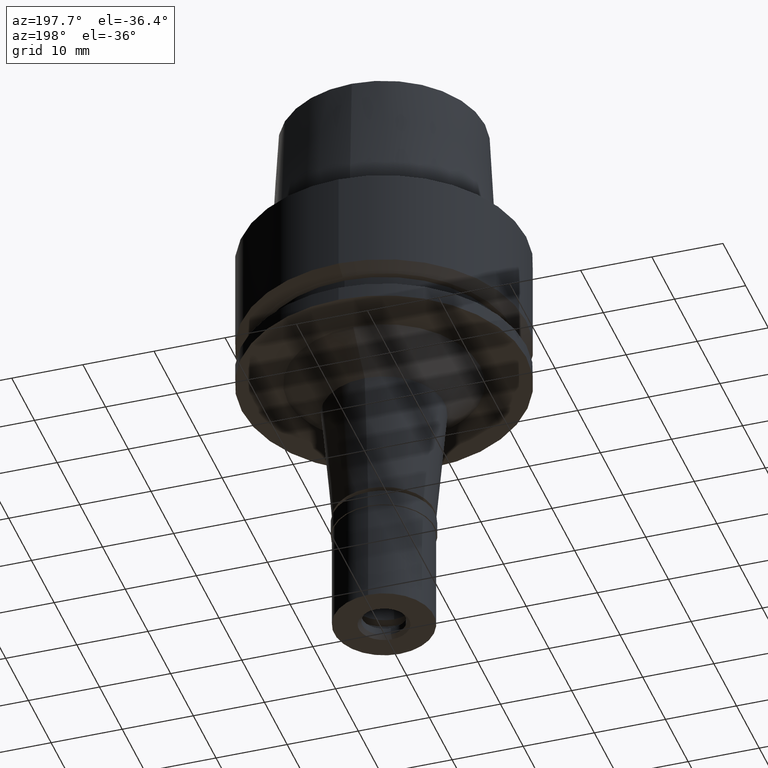
[diagram: clean part render]
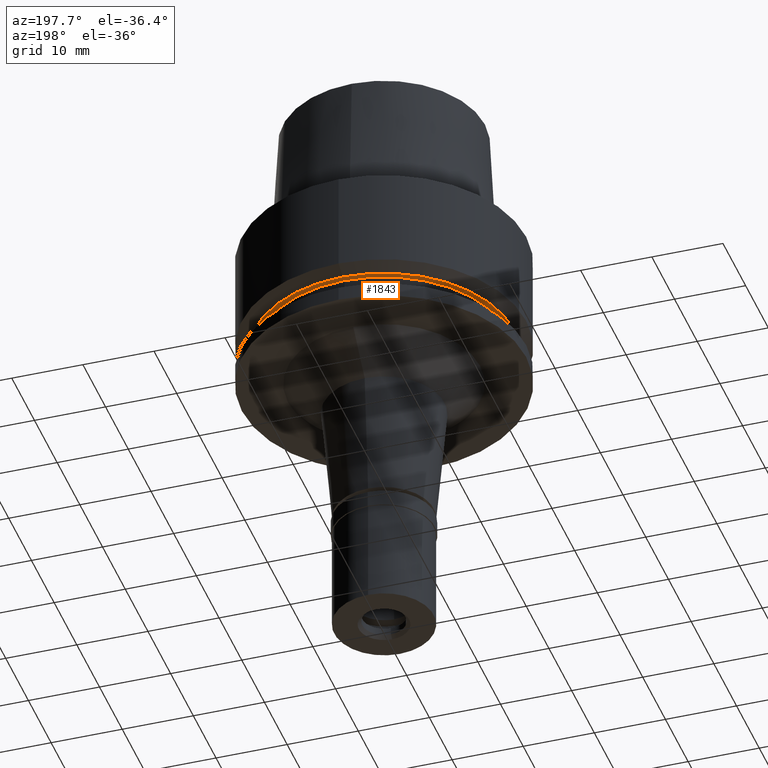
[diagram: same view with one face highlighted and labeled with its STEP entity id]
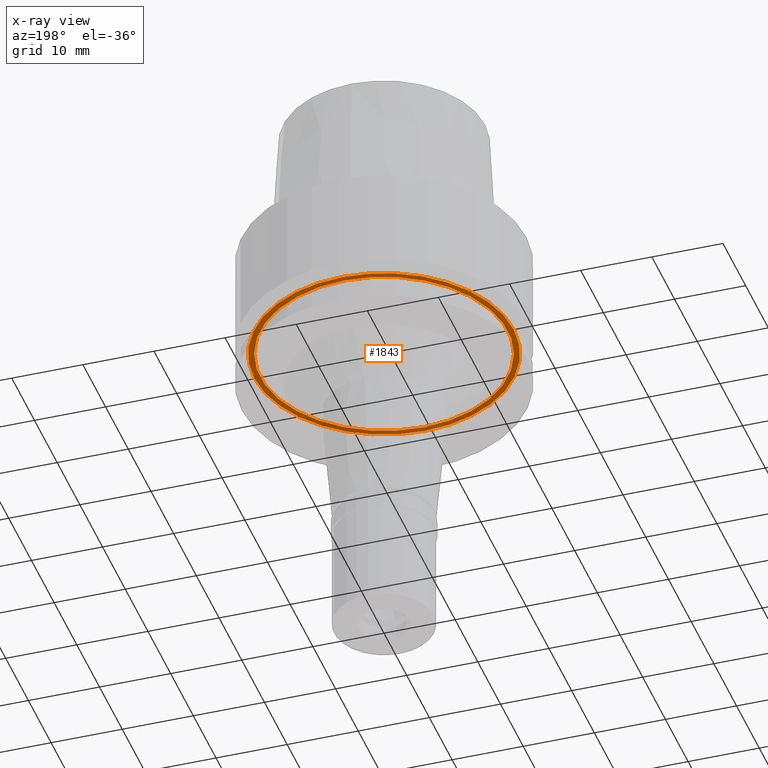
[diagram: x-ray of the same camera — body ghosted, the highlighted face saturated]
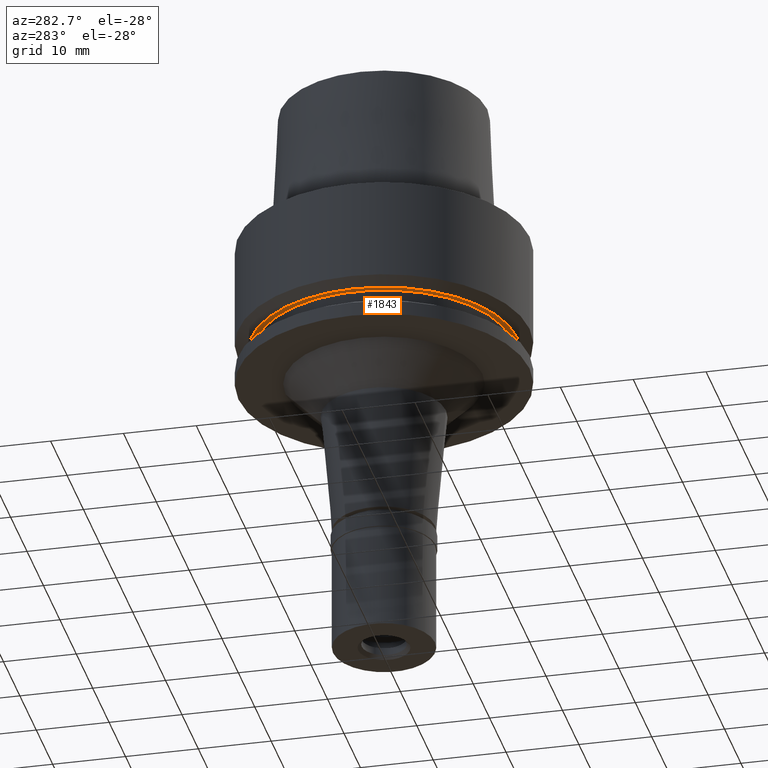
[diagram: same view with one face highlighted and labeled with its STEP entity id]
A machine part, auxiliary view. The second image highlights one B-rep face of the part: STEP entity #1843.
The next image is the same camera in x-ray: the body ghosted, the highlighted face saturated — about 21% of this face is hidden behind the body in this view.
A second angle (auxiliary view) of the same face is appended — the face is thin or edge-on in the first view.
In plain terms, the highlighted planar face has unit normal (0, 0, 1).
Its self-contained STEP definition (entity closure, byte-faithful):
#13 = FACE_BOUND ( 'NONE', #1041, .T. ) ;
#36 = ORIENTED_EDGE ( 'NONE', *, *, #1644, .F. ) ;
#192 = AXIS2_PLACEMENT_3D ( 'NONE', #2526, #403, #2323 ) ;
#223 = AXIS2_PLACEMENT_3D ( 'NONE', #694, #706, #309 ) ;
#279 = ORIENTED_EDGE ( 'NONE', *, *, #1953, .F. ) ;
#309 = DIRECTION ( 'NONE',  ( 0.0000000000000000000, -1.000000000000000000, 0.0000000000000000000 ) ) ;
#373 = CARTESIAN_POINT ( 'NONE',  ( 0.0000000000000000000, 0.0000000000000000000, -15.00000000000000000 ) ) ;
#396 = CARTESIAN_POINT ( 'NONE',  ( 0.0000000000000000000, 18.23205080331999994, -15.00000000000000000 ) ) ;
#400 = DIRECTION ( 'NONE',  ( 0.0000000000000000000, -1.000000000000000000, 0.0000000000000000000 ) ) ;
#403 = DIRECTION ( 'NONE',  ( 0.0000000000000000000, 0.0000000000000000000, -1.000000000000000000 ) ) ;
#534 = CIRCLE ( 'NONE', #223, 17.39999999999999858 ) ;
#654 = CARTESIAN_POINT ( 'NONE',  ( 0.0000000000000000000, 0.0000000000000000000, -15.00000000000000000 ) ) ;
#668 = DIRECTION ( 'NONE',  ( 1.000000000000000000, 0.0000000000000000000, 0.0000000000000000000 ) ) ;
#694 = CARTESIAN_POINT ( 'NONE',  ( 0.0000000000000000000, 0.0000000000000000000, -15.00000000000000000 ) ) ;
#706 = DIRECTION ( 'NONE',  ( 0.0000000000000000000, 0.0000000000000000000, -1.000000000000000000 ) ) ;
#762 = CIRCLE ( 'NONE', #1894, 18.23205080331999994 ) ;
#786 = VERTEX_POINT ( 'NONE', #396 ) ;
#1041 = EDGE_LOOP ( 'NONE', ( #2472, #1909 ) ) ;
#1045 = DIRECTION ( 'NONE',  ( 0.0000000000000000000, 0.0000000000000000000, 1.000000000000000000 ) ) ;
#1192 = CARTESIAN_POINT ( 'NONE',  ( 0.0000000000000000000, -17.39999999999999858, -15.00000000000000000 ) ) ;
#1356 = DIRECTION ( 'NONE',  ( 0.0000000000000000000, 1.000000000000000000, 0.0000000000000000000 ) ) ;
#1382 = CIRCLE ( 'NONE', #192, 17.39999999999999858 ) ;
#1397 = EDGE_CURVE ( 'NONE', #1883, #1612, #534, .T. ) ;
#1496 = DIRECTION ( 'NONE',  ( 0.0000000000000000000, 0.0000000000000000000, 1.000000000000000000 ) ) ;
#1612 = VERTEX_POINT ( 'NONE', #2000 ) ;
#1644 = EDGE_CURVE ( 'NONE', #2002, #786, #2245, .T. ) ;
#1656 = CARTESIAN_POINT ( 'NONE',  ( 0.0000000000000000000, 0.0000000000000000000, -15.00000000000000000 ) ) ;
#1679 = EDGE_LOOP ( 'NONE', ( #279, #36 ) ) ;
#1703 = PLANE ( 'NONE',  #2534 ) ;
#1843 = ADVANCED_FACE ( 'NONE', ( #2334, #13 ), #1703, .F. ) ;
#1883 = VERTEX_POINT ( 'NONE', #1192 ) ;
#1894 = AXIS2_PLACEMENT_3D ( 'NONE', #373, #1045, #1356 ) ;
#1909 = ORIENTED_EDGE ( 'NONE', *, *, #1397, .F. ) ;
#1953 = EDGE_CURVE ( 'NONE', #786, #2002, #762, .T. ) ;
#2000 = CARTESIAN_POINT ( 'NONE',  ( 0.0000000000000000000, 17.39999999999999858, -15.00000000000000000 ) ) ;
#2002 = VERTEX_POINT ( 'NONE', #2352 ) ;
#2245 = CIRCLE ( 'NONE', #2363, 18.23205080331999994 ) ;
#2323 = DIRECTION ( 'NONE',  ( 0.0000000000000000000, 1.000000000000000000, 0.0000000000000000000 ) ) ;
#2334 = FACE_OUTER_BOUND ( 'NONE', #1679, .T. ) ;
#2352 = CARTESIAN_POINT ( 'NONE',  ( 0.0000000000000000000, -18.23205080331999994, -15.00000000000000000 ) ) ;
#2363 = AXIS2_PLACEMENT_3D ( 'NONE', #1656, #2484, #400 ) ;
#2472 = ORIENTED_EDGE ( 'NONE', *, *, #2685, .F. ) ;
#2484 = DIRECTION ( 'NONE',  ( 0.0000000000000000000, 0.0000000000000000000, 1.000000000000000000 ) ) ;
#2526 = CARTESIAN_POINT ( 'NONE',  ( 0.0000000000000000000, 0.0000000000000000000, -15.00000000000000000 ) ) ;
#2534 = AXIS2_PLACEMENT_3D ( 'NONE', #654, #1496, #668 ) ;
#2685 = EDGE_CURVE ( 'NONE', #1612, #1883, #1382, .T. ) ;